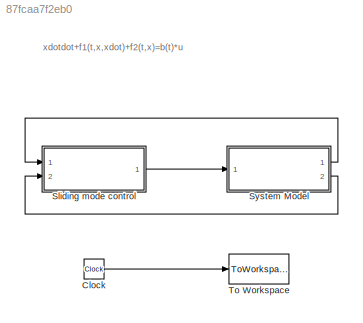
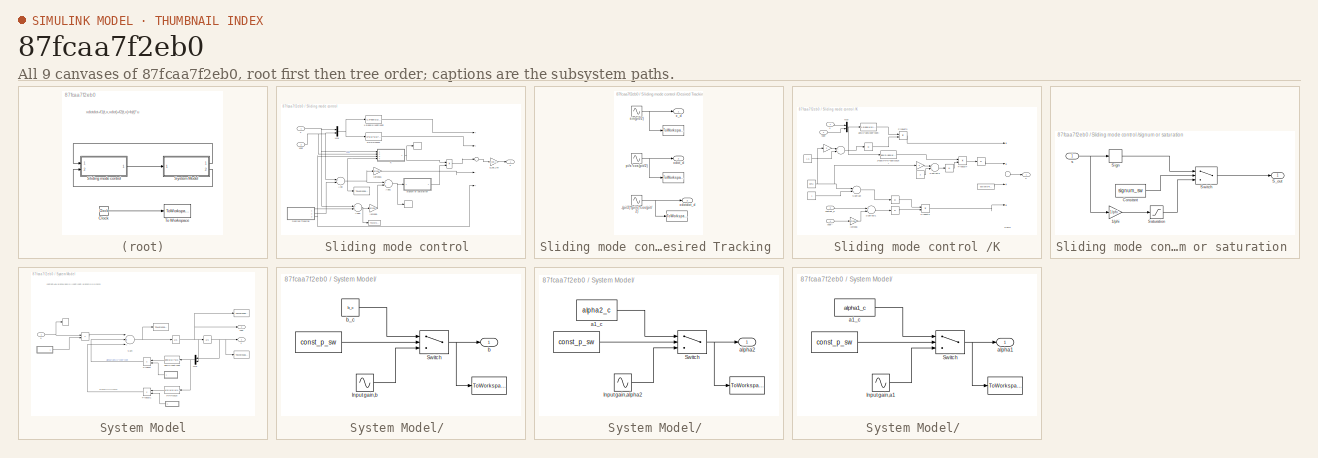
[diagram: thumbnail index - all 9 canvases of the model, root first then tree order]
MODEL slx_87fcaa7f2eb0
KIND model
BLOCK [Clock] Clock
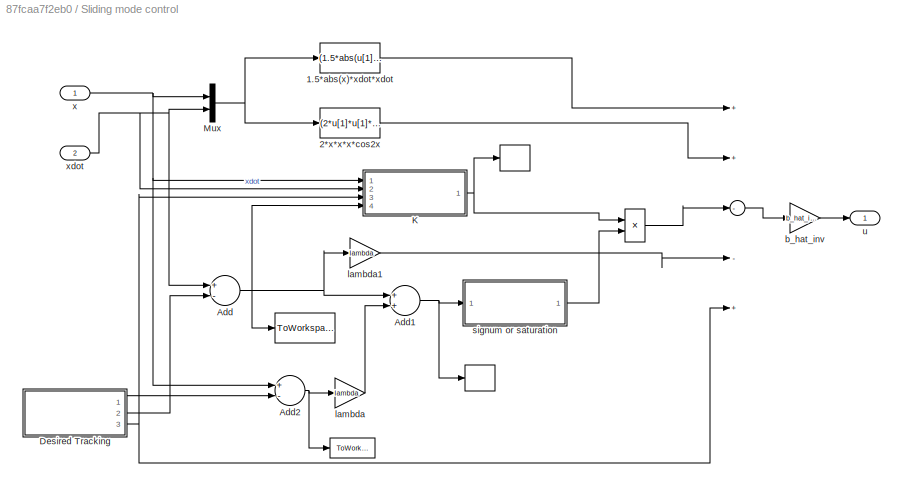
BLOCK [SubSystem] Sliding mode control 
  Ports = [2, 1]
  RequestExecContextInheritance = off
BLOCK [ToWorkspace] Sliding mode control / 
  FixptAsFi = on
  MaxDataPoints = inf
  Ports = [1]
  SampleTime = -1
  Save2DSignal = 3-D array (concatenate along third dimension)
  VariableName = K
BLOCK [Fcn] Sliding mode control /1.5*abs(x)*xdot*xdot
  Expr = (1.5*abs(u[1])*u[2]*u[2])
BLOCK [Fcn] Sliding mode control /2*x*x*x*cos2x
  Expr = (2*u[1]*u[1]*u[1]*cos(2*u[1]))
BLOCK [Sum] Sliding mode control /Add
  InputSameDT = off
  Inputs = +-
  OutDataTypeStr = Inherit: Inherit via internal rule
  Ports = [2, 1]
  SaturateOnIntegerOverflow = off
BLOCK [Sum] Sliding mode control /Add1
  InputSameDT = off
  OutDataTypeStr = Inherit: Inherit via internal rule
  Ports = [2, 1]
  SaturateOnIntegerOverflow = off
BLOCK [Sum] Sliding mode control /Add2
  InputSameDT = off
  Inputs = +-
  OutDataTypeStr = Inherit: Inherit via internal rule
  Ports = [2, 1]
  SaturateOnIntegerOverflow = off
BLOCK [SubSystem] Sliding mode control /Desired Tracking 
  Ports = [0, 3]
  RequestExecContextInheritance = off
BLOCK [ToWorkspace] Sliding mode control /Desired Tracking / 
  FixptAsFi = on
  MaxDataPoints = inf
  Ports = [1]
  SampleTime = -1
  Save2DSignal = 3-D array (concatenate along third dimension)
  VariableName = xdotdot_d
BLOCK [Sin] Sliding mode control /Desired Tracking /-(pi//2)*(pi//s)*cos(pit//2)
  Amplitude = -(pi/2)*(pi/2)
  Frequency = pi/2
  Ports = [0, 1]
  SampleTime = 0
BLOCK [Sin] Sliding mode control /Desired Tracking /pi//s*cos(pit//2)
  Amplitude = pi/2
  Frequency = pi/2
  Phase = pi/2
  Ports = [0, 1]
  SampleTime = 0
BLOCK [Sin] Sliding mode control /Desired Tracking /sin(pit//2)
  Frequency = pi/2
  Ports = [0, 1]
  SampleTime = 0
BLOCK [Outport] Sliding mode control /Desired Tracking /x_d
  IconDisplay = Port number
BLOCK [Outport] Sliding mode control /Desired Tracking /xdot_d
  IconDisplay = Port number
  Port = 2
BLOCK [Outport] Sliding mode control /Desired Tracking /xdotdot_d
  IconDisplay = Port number
  Port = 3
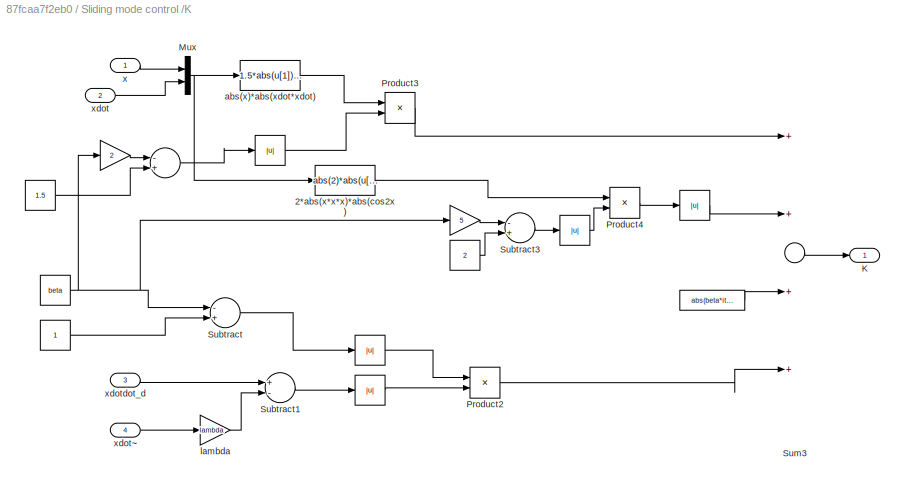
BLOCK [SubSystem] Sliding mode control /K
  Ports = [4, 1]
  RequestExecContextInheritance = off
BLOCK [Abs] Sliding mode control /K/ 
  SaturateOnIntegerOverflow = off
BLOCK [Fcn] Sliding mode control /K/2*abs(x*x*x)*abs(cos2x)
  Expr = abs(2)*abs(u[1]*u[1]*u[1])*abs(cos (2*u[1]))
BLOCK [Outport] Sliding mode control /K/K
  IconDisplay = Port number
BLOCK [Mux] Sliding mode control /K/Mux
  DisplayOption = bar
  Inputs = 2
  Ports = [2, 1]
BLOCK [Product] Sliding mode control /K/Product2
  InputSameDT = off
  OutDataTypeStr = Inherit: Inherit via internal rule
  Ports = [2, 1]
  RndMeth = Floor
  SaturateOnIntegerOverflow = off
BLOCK [Product] Sliding mode control /K/Product3
  InputSameDT = off
  OutDataTypeStr = Inherit: Inherit via internal rule
  Ports = [2, 1]
  RndMeth = Floor
  SaturateOnIntegerOverflow = off
BLOCK [Product] Sliding mode control /K/Product4
  InputSameDT = off
  OutDataTypeStr = Inherit: Inherit via internal rule
  Ports = [2, 1]
  RndMeth = Floor
  SaturateOnIntegerOverflow = off
BLOCK [Sum] Sliding mode control /K/Subtract
  InputSameDT = off
  Inputs = -+
  OutDataTypeStr = Inherit: Inherit via internal rule
  Ports = [2, 1]
  SaturateOnIntegerOverflow = off
BLOCK [Sum] Sliding mode control /K/Subtract1
  InputSameDT = off
  Inputs = +-
  OutDataTypeStr = Inherit: Inherit via internal rule
  Ports = [2, 1]
  SaturateOnIntegerOverflow = off
BLOCK [Sum] Sliding mode control /K/Subtract3
  InputSameDT = off
  Inputs = -+
  OutDataTypeStr = Inherit: Inherit via internal rule
  Ports = [2, 1]
  SaturateOnIntegerOverflow = off
BLOCK [Sum] Sliding mode control /K/Sum3
  InputSameDT = off
  Inputs = ++++
  OutDataTypeStr = Inherit: Inherit via internal rule
  Ports = [4, 1]
BLOCK [Fcn] Sliding mode control /K/abs(x)*abs(xdot*xdot)
  Expr = 1.5*abs(u[1])*abs(u[2]*u[2])
BLOCK [Gain] Sliding mode control /K/lambda
  Gain = lambda
  OutDataTypeStr = Inherit: Inherit via internal rule
  ParamDataTypeStr = Inherit: Inherit via internal rule
  SaturateOnIntegerOverflow = off
BLOCK [Inport] Sliding mode control /K/x
  IconDisplay = Port number
BLOCK [Inport] Sliding mode control /K/xdot
  IconDisplay = Port number
  Port = 2
BLOCK [Inport] Sliding mode control /K/xdotdot_d
  IconDisplay = Port number
  Port = 3
BLOCK [Inport] Sliding mode control /K/xdot~
  IconDisplay = Port number
  Port = 4
BLOCK [Mux] Sliding mode control /Mux
  DisplayOption = bar
  Inputs = 2
  Ports = [2, 1]
BLOCK [Gain] Sliding mode control /b_hat_inv
  Gain = b_hat_inv
  OutDataTypeStr = Inherit: Inherit via internal rule
  ParamDataTypeStr = Inherit: Inherit via internal rule
  SaturateOnIntegerOverflow = off
BLOCK [Gain] Sliding mode control /lambda
  Gain = lambda
  OutDataTypeStr = Inherit: Inherit via internal rule
  ParamDataTypeStr = Inherit: Inherit via internal rule
  SaturateOnIntegerOverflow = off
BLOCK [Gain] Sliding mode control /lambda1
  Gain = lambda
  OutDataTypeStr = Inherit: Inherit via internal rule
  ParamDataTypeStr = Inherit: Inherit via internal rule
  SaturateOnIntegerOverflow = off
BLOCK [SubSystem] Sliding mode control /signum or saturation 
  Ports = [1, 1]
  RequestExecContextInheritance = off
BLOCK [Gain] Sliding mode control /signum or saturation /1//phi
  Gain = 1/phi
  OutDataTypeStr = Inherit: Inherit via internal rule
  ParamDataTypeStr = Inherit: Inherit via internal rule
  SaturateOnIntegerOverflow = off
BLOCK [Constant] Sliding mode control /signum or saturation /Constant
  Value = signum_sw
BLOCK [Outport] Sliding mode control /signum or saturation /S_out
  IconDisplay = Port number
BLOCK [Saturate] Sliding mode control /signum or saturation /Saturation
  InputPortMap = u0
  LowerLimit = -1
  Ports = [1, 1]
  UpperLimit = 1
BLOCK [Signum] Sliding mode control /signum or saturation /Sign
BLOCK [Switch] Sliding mode control /signum or saturation /Switch
  InputSameDT = off
  SaturateOnIntegerOverflow = off
  Threshold = 0.5
BLOCK [Inport] Sliding mode control /signum or saturation /s
  IconDisplay = Port number
BLOCK [Outport] Sliding mode control /u
  IconDisplay = Port number
BLOCK [Inport] Sliding mode control /x 
  IconDisplay = Port number
BLOCK [Inport] Sliding mode control /xdot
  IconDisplay = Port number
  Port = 2
BLOCK [SubSystem] System Model
  Ports = [1, 2]
  RequestExecContextInheritance = off
BLOCK [ToWorkspace] System Model/ 
  FixptAsFi = on
  MaxDataPoints = inf
  Ports = [1]
  SampleTime = -1
  Save2DSignal = 3-D array (concatenate along third dimension)
  VariableName = xdotdot
BLOCK [ToWorkspace] System Model/ / 
  FixptAsFi = on
  MaxDataPoints = inf
  Ports = [1]
  SampleTime = -1
  Save2DSignal = 3-D array (concatenate along third dimension)
  VariableName = alpha1
BLOCK [Sin] System Model/ /Input gain,a1
  Amplitude = 0.5
  Bias = 1.5
  Ports = [0, 1]
  SampleTime = 0
BLOCK [Sin] System Model/ /Input gain,alpha2
  Amplitude = 3
  Bias = 2
  Ports = [0, 1]
  SampleTime = 0
BLOCK [Sin] System Model/ /Input gain,b
  Amplitude = 1.5
  Bias = 5.5
  Ports = [0, 1]
  SampleTime = 0
BLOCK [Switch] System Model/ /Switch
  InputSameDT = off
  SaturateOnIntegerOverflow = off
  Threshold = 0.5
BLOCK [Constant] System Model/ /a1_c
  Value = alpha1_c
BLOCK [Outport] System Model/ /alpha1
  IconDisplay = Port number
BLOCK [Outport] System Model/ /alpha2
  IconDisplay = Port number
BLOCK [Outport] System Model/ /b
  IconDisplay = Port number
BLOCK [Constant] System Model/ /b_c
  Value = b_c
BLOCK [Mux] System Model/Mux
  DisplayOption = bar
  Inputs = 2
  Ports = [2, 1]
BLOCK [Product] System Model/Product
  InputSameDT = off
  OutDataTypeStr = Inherit: Inherit via internal rule
  Ports = [2, 1]
  RndMeth = Floor
  SaturateOnIntegerOverflow = off
BLOCK [Product] System Model/Product1
  InputSameDT = off
  OutDataTypeStr = Inherit: Inherit via internal rule
  Ports = [2, 1]
  RndMeth = Floor
  SaturateOnIntegerOverflow = off
BLOCK [Sum] System Model/Sum
  InputSameDT = off
  Inputs = |+--
  OutDataTypeStr = Inherit: Inherit via internal rule
  Ports = [3, 1]
  SaturateOnIntegerOverflow = off
BLOCK [Fcn] System Model/abs(x)*xdot*xdot
  Expr = abs(u[1])*u[2]*u[2]
BLOCK [Inport] System Model/u
  IconDisplay = Port number
BLOCK [Outport] System Model/x
  IconDisplay = Port number
BLOCK [Fcn] System Model/x*x*x*cos2x
  Expr = u[1]*u[1]*u[1]*cos(2*u[1])
BLOCK [Outport] System Model/xdot
  IconDisplay = Port number
  Port = 2
BLOCK [ToWorkspace] To Workspace
  FixptAsFi = on
  MaxDataPoints = inf
  Ports = [1]
  SampleTime = -1
  Save2DSignal = 3-D array (concatenate along third dimension)
  VariableName = t
ANNOTATION (root): xdotdot+f1(t,x,xdot)+f2(t,x)=b(t)*u
ANNOTATION System Model: xdotdot=bu-alpha1(abs(x))*xdot*xdot-alpha2*x*x*x*cos2x
ANNOTATION System Model: alpha2*x*x*x*cos2x
LINE Clock:1 -> To Workspace:1
NET Sliding mode control / :1 -> Sliding mode control / :3, Sliding mode control /b_hat_inv:1
LINE Sliding mode control /1.5*abs(x)*xdot*xdot:1 -> Sliding mode control / :1
LINE Sliding mode control /2*x*x*x*cos2x:1 -> Sliding mode control / :2
NET Sliding mode control /Add1:1 -> Sliding mode control / :1, Sliding mode control /signum or saturation :1
NET Sliding mode control /Add2:1 -> Sliding mode control / :1, Sliding mode control /lambda:1
NET Sliding mode control /Add:1 -> Sliding mode control / :1, Sliding mode control /Add1:1, Sliding mode control /K:4, Sliding mode control /lambda1:1
NET Sliding mode control /Desired Tracking /-(pi//2)*(pi//s)*cos(pit//2):1 -> Sliding mode control /Desired Tracking / :1, Sliding mode control /Desired Tracking /xdotdot_d:1
NET Sliding mode control /Desired Tracking /pi//s*cos(pit//2):1 -> Sliding mode control /Desired Tracking / :1, Sliding mode control /Desired Tracking /xdot_d:1
NET Sliding mode control /Desired Tracking /sin(pit//2):1 -> Sliding mode control /Desired Tracking / :1, Sliding mode control /Desired Tracking /x_d:1
LINE Sliding mode control /Desired Tracking :1 -> Sliding mode control /Add2:2
LINE Sliding mode control /Desired Tracking :2 -> Sliding mode control /Add:2
NET Sliding mode control /Desired Tracking :3 -> Sliding mode control / :5, Sliding mode control /K:3
NET Sliding mode control /K/ :1 -> Sliding mode control /K/ :1, Sliding mode control /K/ :2, Sliding mode control /K/Product2:1, Sliding mode control /K/Product2:2, Sliding mode control /K/Product3:2, Sliding mode control /K/Product4:2, Sliding mode control /K/Subtract3:1, Sliding mode control /K/Subtract3:2, Sliding mode control /K/Subtract:1, Sliding mode control /K/Subtract:2, Sliding mode control /K/Sum3:2, Sliding mode control /K/Sum3:3
LINE Sliding mode control /K/2*abs(x*x*x)*abs(cos2x):1 -> Sliding mode control /K/Product4:1
NET Sliding mode control /K/Mux:1 -> Sliding mode control /K/2*abs(x*x*x)*abs(cos2x):1, Sliding mode control /K/abs(x)*abs(xdot*xdot):1
LINE Sliding mode control /K/Product2:1 -> Sliding mode control /K/Sum3:4
LINE Sliding mode control /K/Product3:1 -> Sliding mode control /K/Sum3:1
LINE Sliding mode control /K/Product4:1 -> Sliding mode control /K/ :1
LINE Sliding mode control /K/Subtract1:1 -> Sliding mode control /K/ :1
LINE Sliding mode control /K/Subtract3:1 -> Sliding mode control /K/ :1
LINE Sliding mode control /K/Subtract:1 -> Sliding mode control /K/ :1
LINE Sliding mode control /K/Sum3:1 -> Sliding mode control /K/K:1
LINE Sliding mode control /K/abs(x)*abs(xdot*xdot):1 -> Sliding mode control /K/Product3:1
LINE Sliding mode control /K/lambda:1 -> Sliding mode control /K/Subtract1:2
LINE Sliding mode control /K/x:1 -> Sliding mode control /K/Mux:1
LINE Sliding mode control /K/xdot:1 -> Sliding mode control /K/Mux:2
LINE Sliding mode control /K/xdotdot_d:1 -> Sliding mode control /K/Subtract1:1
LINE Sliding mode control /K/xdot~:1 -> Sliding mode control /K/lambda:1
LINE Sliding mode control /K:1 -> Sliding mode control / :1
NET Sliding mode control /Mux:1 -> Sliding mode control /1.5*abs(x)*xdot*xdot:1, Sliding mode control /2*x*x*x*cos2x:1
LINE Sliding mode control /b_hat_inv:1 -> Sliding mode control /u:1
LINE Sliding mode control /lambda1:1 -> Sliding mode control / :4
LINE Sliding mode control /lambda:1 -> Sliding mode control /Add1:2
LINE Sliding mode control /signum or saturation /1//phi:1 -> Sliding mode control /signum or saturation /Saturation:1
LINE Sliding mode control /signum or saturation /Constant:1 -> Sliding mode control /signum or saturation /Switch:2
LINE Sliding mode control /signum or saturation /Saturation:1 -> Sliding mode control /signum or saturation /Switch:3
LINE Sliding mode control /signum or saturation /Sign:1 -> Sliding mode control /signum or saturation /Switch:1
LINE Sliding mode control /signum or saturation /Switch:1 -> Sliding mode control /signum or saturation /S_out:1
NET Sliding mode control /signum or saturation /s:1 -> Sliding mode control /signum or saturation /1//phi:1, Sliding mode control /signum or saturation /Sign:1
LINE Sliding mode control /signum or saturation :1 -> Sliding mode control / :2
NET Sliding mode control /x :1 -> Sliding mode control /Add2:1, Sliding mode control /K:1, Sliding mode control /Mux:1
NET Sliding mode control /xdot:1 -> Sliding mode control /Add:1, Sliding mode control /K:2, Sliding mode control /Mux:2
LINE Sliding mode control :1 -> System Model:1
LINE System Model/ / :1 -> System Model/ /Switch:2
LINE System Model/ /Input gain,a1:1 -> System Model/ /Switch:3
LINE System Model/ /Input gain,alpha2:1 -> System Model/ /Switch:3
LINE System Model/ /Input gain,b:1 -> System Model/ /Switch:3
NET System Model/ /Switch:1 -> System Model/ / :1, System Model/ /alpha1:1, System Model/ /alpha2:1, System Model/ /b:1
LINE System Model/ /a1_c:1 -> System Model/ /Switch:1
LINE System Model/ /b_c:1 -> System Model/ /Switch:1
NET System Model/ :1 -> System Model/ :1, System Model/ :2, System Model/Mux:1, System Model/Mux:2, System Model/Product1:2, System Model/Product:2, System Model/Sum:1, System Model/x:1, System Model/xdot:1
NET System Model/Mux:1 -> System Model/abs(x)*xdot*xdot:1, System Model/x*x*x*cos2x:1
LINE System Model/Product1:1 -> System Model/Sum:3
LINE System Model/Product:1 -> System Model/Sum:2
LINE System Model/Sum:1 -> System Model/ :1
LINE System Model/abs(x)*xdot*xdot:1 -> System Model/Product:1
LINE System Model/u:1 -> System Model/ :1
LINE System Model/x*x*x*cos2x:1 -> System Model/Product1:1
LINE System Model:1 -> Sliding mode control :1
LINE System Model:2 -> Sliding mode control :2
note: NET lines group one-source signal fan-out (src -> all destinations, sorted); 1:1 wires keep LINE
